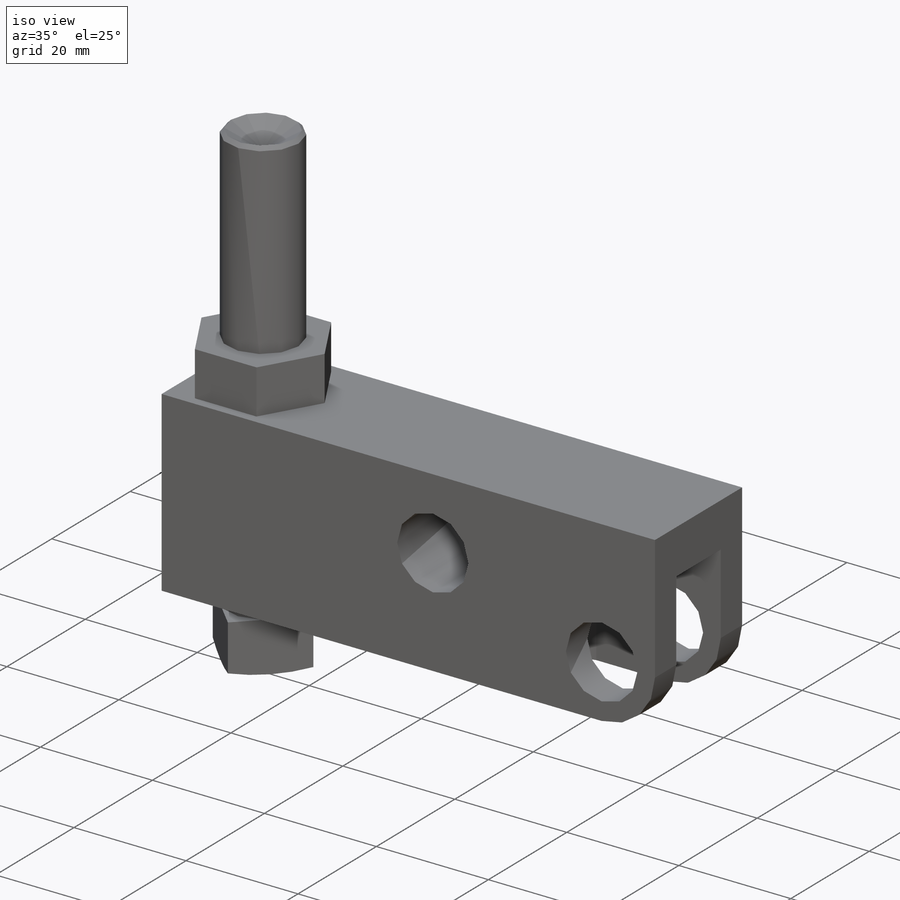
[diagram: iso view]
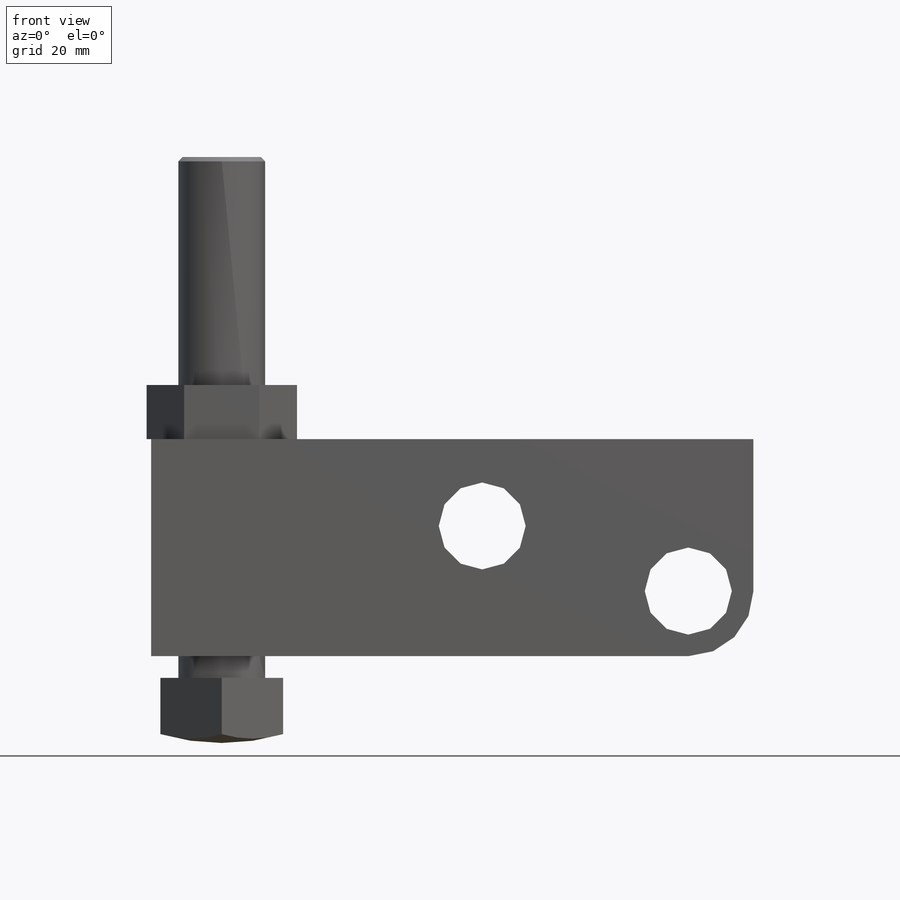
[diagram: front view]
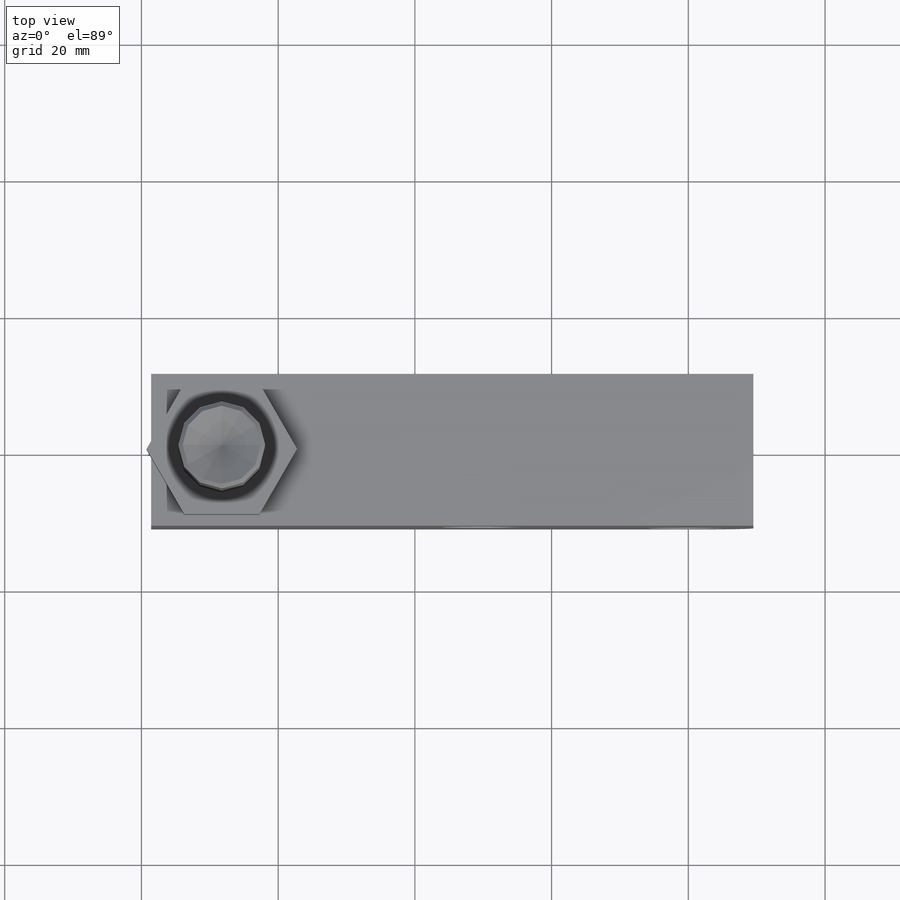
[diagram: top view]
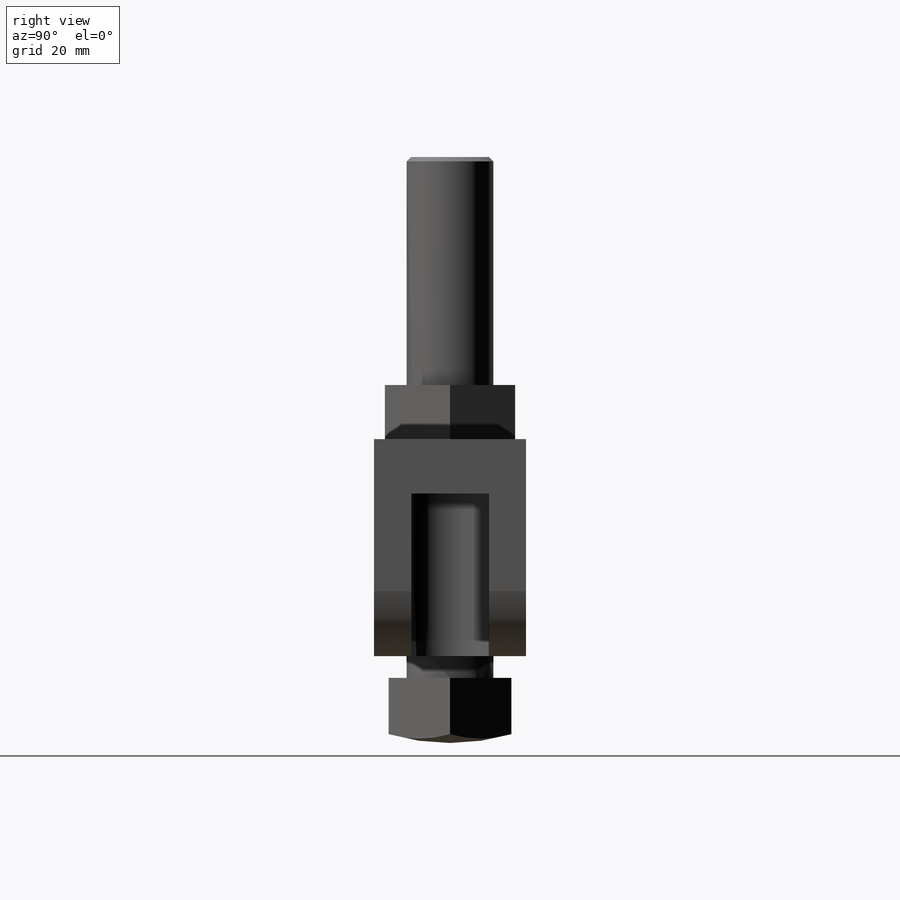
[diagram: right view]
SOLIDWORKS PART (.sldprt)
format: sldprt  version: not decoded by parser v0  size: 232,448 bytes
history: native  units: mm
features: sketch x5, extrude x2, cut_extrude x2, material x1, fillet x1, revolve x1 (+13 scaffold rows collapsed)
feature tree (25):
  scaffold x13  (default folders/planes/origin — collapsed)
  material  "Alloy Steel"
  sketch  "Sketch11"  dims[c1.D1=12.7381mm c1.D6=12.7127mm c1.D2=9.525mm c1.D3=4.7498mm c1.D4=31.75mm c1.D5=50.8mm c2.D6=55.5498mm c2.D7=22.225mm c2.D8=9.525mm c2.D3=78.5876mm c2.D5=30.1498mm c3.D7=9.525mm]
  extrude  "Extrude3"  Depth=22.225mm
  sketch  "Sketch12"  dims[c1.D3=3.302mm c1.D1=11.3538mm c1.D2=5.4356mm c2.D3=27.9146mm]
  cut_extrude  "Cut-Extrude1"  Depth=23.7998mm
  fillet  "Fillet1"  Radius=9.525mm
  sketch  "Sketch13"  dims[D1=19.05mm D2=68.2498mm]
  extrude  "Extrude4"  Depth=7.9248mm
  sketch  "Sketch14"  dims[c1.D5=31.75mm c1.D1=~1.876263mm c2.D1=60.0deg c2.D2=11.43mm c2.D3=~1.161633mm c3.D3=45.0deg c3.D4=76.2mm c3.D5=4.7752mm c3.D6=1.5748mm c3.D7=9.525mm c3.D8=0.762mm c3.D9=12.7mm c4.D6=12.7mm c4.D10=68.2498mm]
  revolve  "Revolve2"  Angle=360deg
  sketch  "Sketch15"  dims[D1=12.7mm]
  cut_extrude  "Cut-Extrude2"  [1 undecoded]
decode coverage: 10 of 11 modeling features carry decoded parameters
note: ~ marks probable driven/reference dimensions
note: 1 parameter value undecoded
note: suppression state not decoded; provenance and decode notes live in map.json
